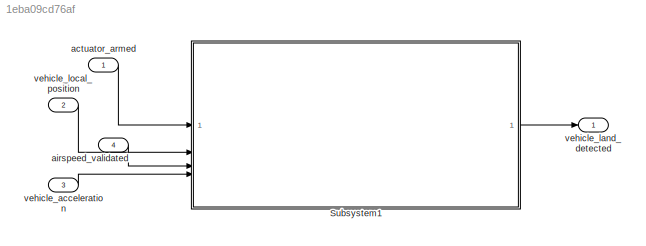
MODEL slx_1eba09cd76af
KIND model
CONFIG AbsTol = auto
CONFIG EnableMultiTasking = off
CONFIG FixedStep = 0.005
CONFIG MaxStep = auto
CONFIG MinStep = auto
CONFIG RelTol = 1e-3
CONFIG SampleTimeConstraint = Unconstrained
CONFIG SolverName = FixedStepAuto
CONFIG StartTime = 0.0
CONFIG StopTime = 10.0
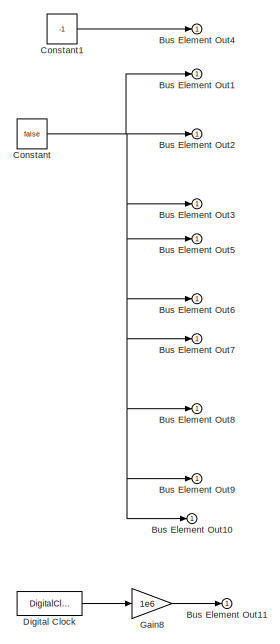
[diagram: Subsystem1 - part 1/2, right side, full height]
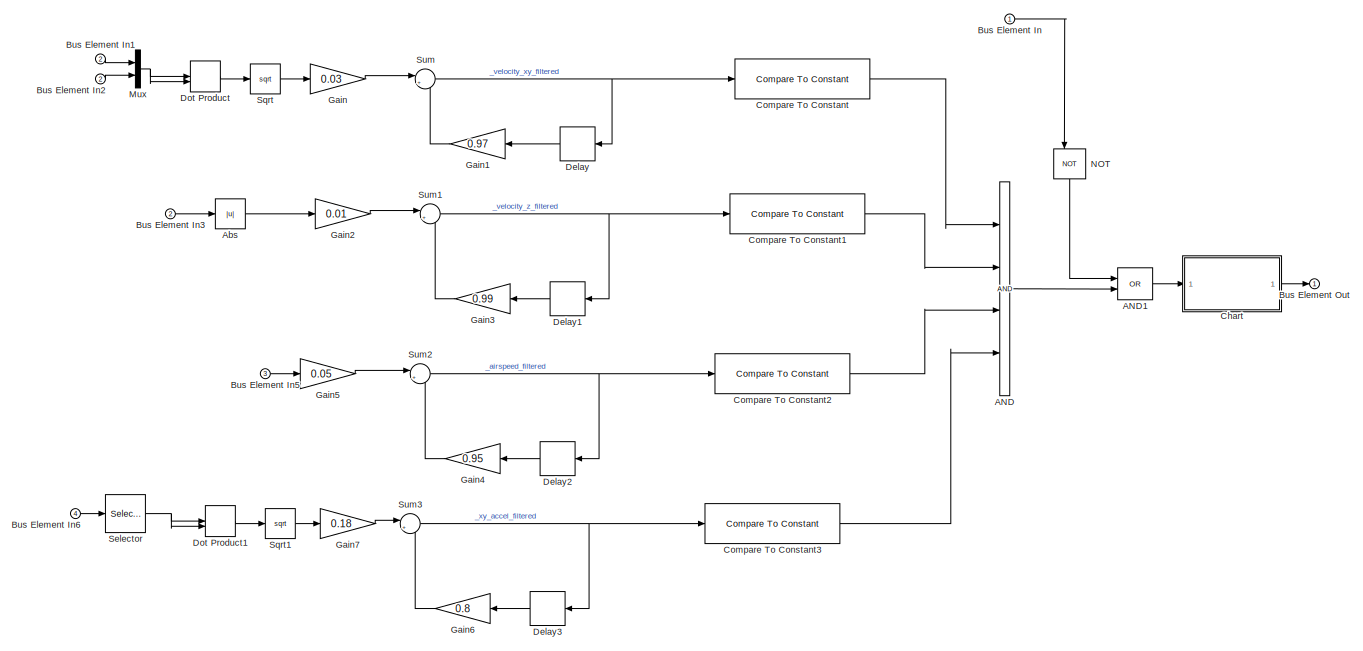
[diagram: Subsystem1 - part 2/2, most of the canvas]
BLOCK [SubSystem] Subsystem1
BLOCK [Logic] Subsystem1/AND
  AllPortsSameDT = off
  IconShape = distinctive
  Inputs = 4
  OutDataTypeStr = boolean
BLOCK [Logic] Subsystem1/AND1
  AllPortsSameDT = off
  IconShape = distinctive
  Operator = OR
  OutDataTypeStr = boolean
BLOCK [Abs] Subsystem1/Abs
  SaturateOnIntegerOverflow = off
BLOCK [Inport] Subsystem1/Bus Element In
BLOCK [Inport] Subsystem1/Bus Element In1
  Port = 2
BLOCK [Inport] Subsystem1/Bus Element In2
  Port = 2
BLOCK [Inport] Subsystem1/Bus Element In3
  Port = 2
BLOCK [Inport] Subsystem1/Bus Element In5
  Port = 3
BLOCK [Inport] Subsystem1/Bus Element In6
  Port = 4
BLOCK [Outport] Subsystem1/Bus Element Out
BLOCK [Outport] Subsystem1/Bus Element Out1
BLOCK [Outport] Subsystem1/Bus Element Out10
BLOCK [Outport] Subsystem1/Bus Element Out11
BLOCK [Outport] Subsystem1/Bus Element Out2
BLOCK [Outport] Subsystem1/Bus Element Out3
BLOCK [Outport] Subsystem1/Bus Element Out4
BLOCK [Outport] Subsystem1/Bus Element Out5
BLOCK [Outport] Subsystem1/Bus Element Out6
BLOCK [Outport] Subsystem1/Bus Element Out7
BLOCK [Outport] Subsystem1/Bus Element Out8
BLOCK [Outport] Subsystem1/Bus Element Out9
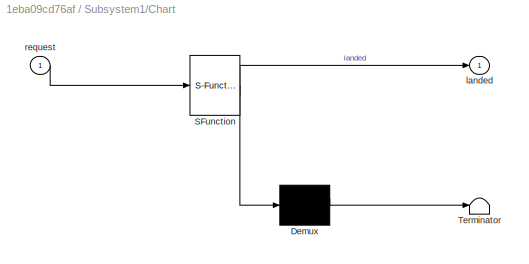
BLOCK [SubSystem] Subsystem1/Chart
  ErrorFcn = Stateflow.Translate.translate
  PermitHierarchicalResolution = ExplicitOnly
  SFBlockType = Chart
  TreatAsAtomicUnit = on
BLOCK [Demux] Subsystem1/Chart/ Demux 
  Outputs = 1
BLOCK [S-Function] Subsystem1/Chart/ SFunction 
  EnableBusSupport = on
  FunctionName = sf_sfun
  PortCounts = [1 2]
  SFcnIsStateOwnerBlock = off
  SFunctionDeploymentMode = off
  Tag = Stateflow S-Function 3
BLOCK [Terminator] Subsystem1/Chart/ Terminator 
BLOCK [Outport] Subsystem1/Chart/landed
BLOCK [Inport] Subsystem1/Chart/request
BLOCK [Reference] Subsystem1/Compare To Constant  REF=simulink/Logic and Bit
Operations/Compare
To Constant
  SourceBlock = simulink/Logic and Bit\nOperations/Compare\nTo Constant
  SourceType = Compare To Constant
BLOCK [Reference] Subsystem1/Compare To Constant1  REF=simulink/Logic and Bit
Operations/Compare
To Constant
  SourceBlock = simulink/Logic and Bit\nOperations/Compare\nTo Constant
  SourceType = Compare To Constant
BLOCK [Reference] Subsystem1/Compare To Constant2  REF=simulink/Logic and Bit
Operations/Compare
To Constant
  SourceBlock = simulink/Logic and Bit\nOperations/Compare\nTo Constant
  SourceType = Compare To Constant
BLOCK [Reference] Subsystem1/Compare To Constant3  REF=simulink/Logic and Bit
Operations/Compare
To Constant
  SourceBlock = simulink/Logic and Bit\nOperations/Compare\nTo Constant
  SourceType = Compare To Constant
BLOCK [Constant] Subsystem1/Constant
  Value = false
BLOCK [Constant] Subsystem1/Constant1
  OutDataTypeStr = single
  Value = -1
BLOCK [Delay] Subsystem1/Delay
  DelayLength = 1
  InputPortMap = u0
  NameLocation = top
BLOCK [Delay] Subsystem1/Delay1
  DelayLength = 1
  InputPortMap = u0
  NameLocation = top
BLOCK [Delay] Subsystem1/Delay2
  DelayLength = 1
  InputPortMap = u0
  NameLocation = top
BLOCK [Delay] Subsystem1/Delay3
  DelayLength = 1
  InputPortMap = u0
  NameLocation = top
BLOCK [DigitalClock] Subsystem1/Digital Clock
  SampleTime = -1
BLOCK [DotProduct] Subsystem1/Dot Product
  OutDataTypeStr = Inherit: Inherit via internal rule
BLOCK [DotProduct] Subsystem1/Dot Product1
  OutDataTypeStr = Inherit: Inherit via internal rule
BLOCK [Gain] Subsystem1/Gain
  Gain = 0.03
BLOCK [Gain] Subsystem1/Gain1
  Gain = 0.97
  NameLocation = top
BLOCK [Gain] Subsystem1/Gain2
  Gain = 0.01
BLOCK [Gain] Subsystem1/Gain3
  Gain = 0.99
  NameLocation = top
BLOCK [Gain] Subsystem1/Gain4
  Gain = 0.95
  NameLocation = top
BLOCK [Gain] Subsystem1/Gain5
  Gain = 0.05
BLOCK [Gain] Subsystem1/Gain6
  Gain = 0.8
  NameLocation = top
BLOCK [Gain] Subsystem1/Gain7
  Gain = 0.18
BLOCK [Gain] Subsystem1/Gain8
  Gain = 1e6
  OutDataTypeStr = uint64
BLOCK [Mux] Subsystem1/Mux
  DisplayOption = bar
  Inputs = 2
BLOCK [Logic] Subsystem1/NOT
  AllPortsSameDT = off
  IconShape = distinctive
  NameLocation = left
  Operator = NOT
  OutDataTypeStr = boolean
BLOCK [Selector] Subsystem1/Selector
  IndexOptions = Index vector (dialog)
  Indices = [1 2]
  InputPortWidth = 3
  OutputSizes = 1
BLOCK [Sqrt] Subsystem1/Sqrt
BLOCK [Sqrt] Subsystem1/Sqrt1
BLOCK [Sum] Subsystem1/Sum
  Inputs = |++
BLOCK [Sum] Subsystem1/Sum1
  Inputs = |++
BLOCK [Sum] Subsystem1/Sum2
  Inputs = |++
BLOCK [Sum] Subsystem1/Sum3
  Inputs = |++
BLOCK [Inport] actuator_armed
  OutDataTypeStr = Bus: actuator_armed_s
BLOCK [Inport] airspeed_validated
  OutDataTypeStr = Bus: airspeed_validated_s
  Port = 4
BLOCK [Inport] vehicle_acceleration
  OutDataTypeStr = Bus: vehicle_acceleration_s
  Port = 3
BLOCK [Outport] vehicle_land_detected
  OutDataTypeStr = Bus: vehicle_land_detected_s
BLOCK [Inport] vehicle_local_position
  OutDataTypeStr = Bus: vehicle_local_position_s
  Port = 2
LINE Subsystem1/AND1:1 -> Subsystem1/Chart:1
LINE Subsystem1/AND:1 -> Subsystem1/AND1:2
LINE Subsystem1/Abs:1 -> Subsystem1/Gain2:1
LINE Subsystem1/Bus Element In1:1 -> Subsystem1/Mux:1
LINE Subsystem1/Bus Element In2:1 -> Subsystem1/Mux:2
LINE Subsystem1/Bus Element In3:1 -> Subsystem1/Abs:1
LINE Subsystem1/Bus Element In5:1 -> Subsystem1/Gain5:1
LINE Subsystem1/Bus Element In6:1 -> Subsystem1/Selector:1
LINE Subsystem1/Bus Element In:1 -> Subsystem1/NOT:1
LINE Subsystem1/Chart:1 -> Subsystem1/Bus Element Out:1
LINE Subsystem1/Compare To Constant1:1 -> Subsystem1/AND:2
LINE Subsystem1/Compare To Constant2:1 -> Subsystem1/AND:3
LINE Subsystem1/Compare To Constant3:1 -> Subsystem1/AND:4
LINE Subsystem1/Compare To Constant:1 -> Subsystem1/AND:1
LINE Subsystem1/Constant1:1 -> Subsystem1/Bus Element Out4:1
NET Subsystem1/Constant:1 -> Subsystem1/Bus Element Out10:1, Subsystem1/Bus Element Out1:1, Subsystem1/Bus Element Out2:1, Subsystem1/Bus Element Out3:1, Subsystem1/Bus Element Out5:1, Subsystem1/Bus Element Out6:1, Subsystem1/Bus Element Out7:1, Subsystem1/Bus Element Out8:1, Subsystem1/Bus Element Out9:1
LINE Subsystem1/Delay1:1 -> Subsystem1/Gain3:1
LINE Subsystem1/Delay2:1 -> Subsystem1/Gain4:1
LINE Subsystem1/Delay3:1 -> Subsystem1/Gain6:1
LINE Subsystem1/Delay:1 -> Subsystem1/Gain1:1
LINE Subsystem1/Digital Clock:1 -> Subsystem1/Gain8:1
LINE Subsystem1/Dot Product1:1 -> Subsystem1/Sqrt1:1
LINE Subsystem1/Dot Product:1 -> Subsystem1/Sqrt:1
LINE Subsystem1/Gain1:1 -> Subsystem1/Sum:2
LINE Subsystem1/Gain2:1 -> Subsystem1/Sum1:1
LINE Subsystem1/Gain3:1 -> Subsystem1/Sum1:2
LINE Subsystem1/Gain4:1 -> Subsystem1/Sum2:2
LINE Subsystem1/Gain5:1 -> Subsystem1/Sum2:1
LINE Subsystem1/Gain6:1 -> Subsystem1/Sum3:2
LINE Subsystem1/Gain7:1 -> Subsystem1/Sum3:1
LINE Subsystem1/Gain8:1 -> Subsystem1/Bus Element Out11:1
LINE Subsystem1/Gain:1 -> Subsystem1/Sum:1
NET Subsystem1/Mux:1 -> Subsystem1/Dot Product:1, Subsystem1/Dot Product:2
LINE Subsystem1/NOT:1 -> Subsystem1/AND1:1
NET Subsystem1/Selector:1 -> Subsystem1/Dot Product1:1, Subsystem1/Dot Product1:2
LINE Subsystem1/Sqrt1:1 -> Subsystem1/Gain7:1
LINE Subsystem1/Sqrt:1 -> Subsystem1/Gain:1
NET Subsystem1/Sum1:1 -> Subsystem1/Compare To Constant1:1, Subsystem1/Delay1:1
NET Subsystem1/Sum2:1 -> Subsystem1/Compare To Constant2:1, Subsystem1/Delay2:1
NET Subsystem1/Sum3:1 -> Subsystem1/Compare To Constant3:1, Subsystem1/Delay3:1
NET Subsystem1/Sum:1 -> Subsystem1/Compare To Constant:1, Subsystem1/Delay:1
LINE Subsystem1:1 -> vehicle_land_detected:1
LINE actuator_armed:1 -> Subsystem1:1
LINE airspeed_validated:1 -> Subsystem1:3
LINE vehicle_acceleration:1 -> Subsystem1:4
LINE vehicle_local_position:1 -> Subsystem1:2
note: NET lines group one-source signal fan-out (src -> all destinations, sorted); 1:1 wires keep LINE
CHART Subsystem1/Chart states=2 transitions=3
  STATE_LABEL 'Landed\nen:\nlanded = true;'
  STATE_LABEL 'Flying\nen:\nlanded = false;'
CHART  states=0 transitions=0
